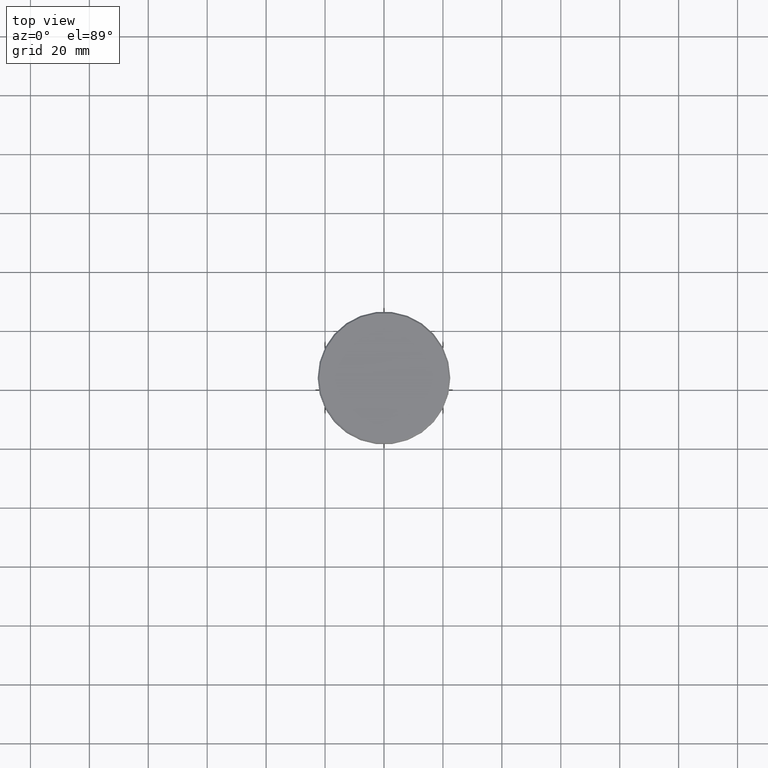
[diagram: clean part render]
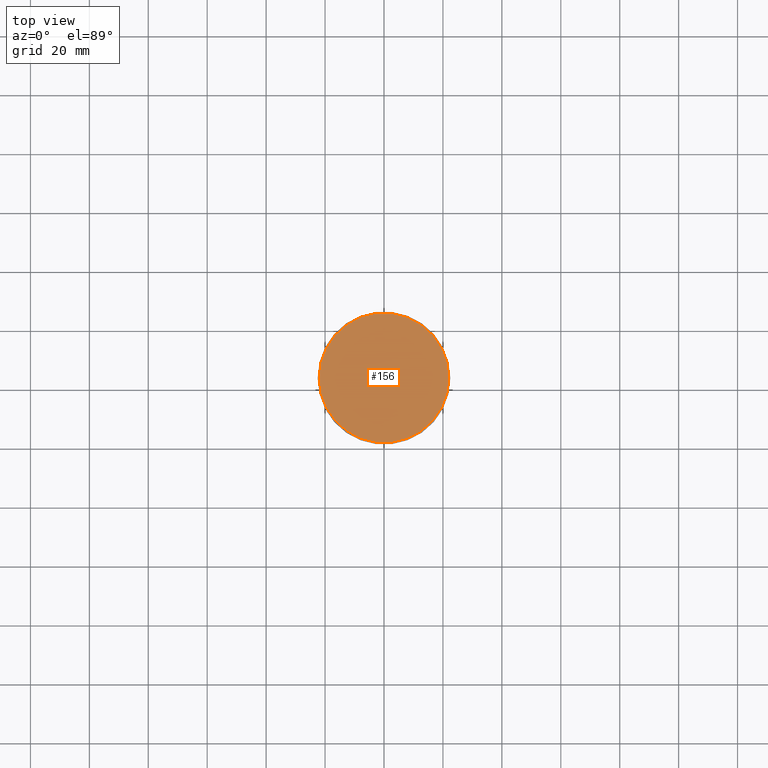
[diagram: same view with one face highlighted and labeled with its STEP entity id]
A machine part, top view. The second image highlights one B-rep face of the part: STEP entity #156.
In plain terms, the highlighted planar face has unit normal (0, -0, 1).
Its self-contained STEP definition (entity closure, byte-faithful):
#35 = CARTESIAN_POINT ( 'NONE',  ( 21.99999999999996447, 2.724839128102858624E-15, 0.000000000000000000 ) ) ;
#69 = CIRCLE ( 'NONE', #1056, 21.99999999999996447 ) ;
#70 = EDGE_CURVE ( 'NONE', #89, #559, #885, .T. ) ;
#80 = AXIS2_PLACEMENT_3D ( 'NONE', #927, #109, #480 ) ;
#89 = VERTEX_POINT ( 'NONE', #35 ) ;
#90 = DIRECTION ( 'NONE',  ( -0.000000000000000000, -0.000000000000000000, 1.000000000000000000 ) ) ;
#109 = DIRECTION ( 'NONE',  ( 0.000000000000000000, -0.000000000000000000, 1.000000000000000000 ) ) ;
#156 = ADVANCED_FACE ( 'NONE', ( #689 ), #567, .T. ) ;
#159 = ORIENTED_EDGE ( 'NONE', *, *, #70, .T. ) ;
#323 = DIRECTION ( 'NONE',  ( -0.000000000000000000, -0.000000000000000000, 1.000000000000000000 ) ) ;
#349 = AXIS2_PLACEMENT_3D ( 'NONE', #760, #323, #1025 ) ;
#480 = DIRECTION ( 'NONE',  ( 1.000000000000000000, 0.000000000000000000, 0.000000000000000000 ) ) ;
#542 = DIRECTION ( 'NONE',  ( 1.000000000000000000, 0.000000000000000000, 0.000000000000000000 ) ) ;
#559 = VERTEX_POINT ( 'NONE', #649 ) ;
#567 = PLANE ( 'NONE',  #80 ) ;
#601 = ORIENTED_EDGE ( 'NONE', *, *, #864, .T. ) ;
#649 = CARTESIAN_POINT ( 'NONE',  ( -21.99999999999996447, 0.000000000000000000, 0.000000000000000000 ) ) ;
#689 = FACE_OUTER_BOUND ( 'NONE', #853, .T. ) ;
#760 = CARTESIAN_POINT ( 'NONE',  ( 0.000000000000000000, 0.000000000000000000, 0.000000000000000000 ) ) ;
#853 = EDGE_LOOP ( 'NONE', ( #601, #159 ) ) ;
#864 = EDGE_CURVE ( 'NONE', #559, #89, #69, .T. ) ;
#885 = CIRCLE ( 'NONE', #349, 21.99999999999996447 ) ;
#895 = CARTESIAN_POINT ( 'NONE',  ( 0.000000000000000000, 0.000000000000000000, 0.000000000000000000 ) ) ;
#927 = CARTESIAN_POINT ( 'NONE',  ( 0.000000000000000000, 0.000000000000000000, 0.000000000000000000 ) ) ;
#1025 = DIRECTION ( 'NONE',  ( 1.000000000000000000, 0.000000000000000000, 0.000000000000000000 ) ) ;
#1056 = AXIS2_PLACEMENT_3D ( 'NONE', #895, #90, #542 ) ;